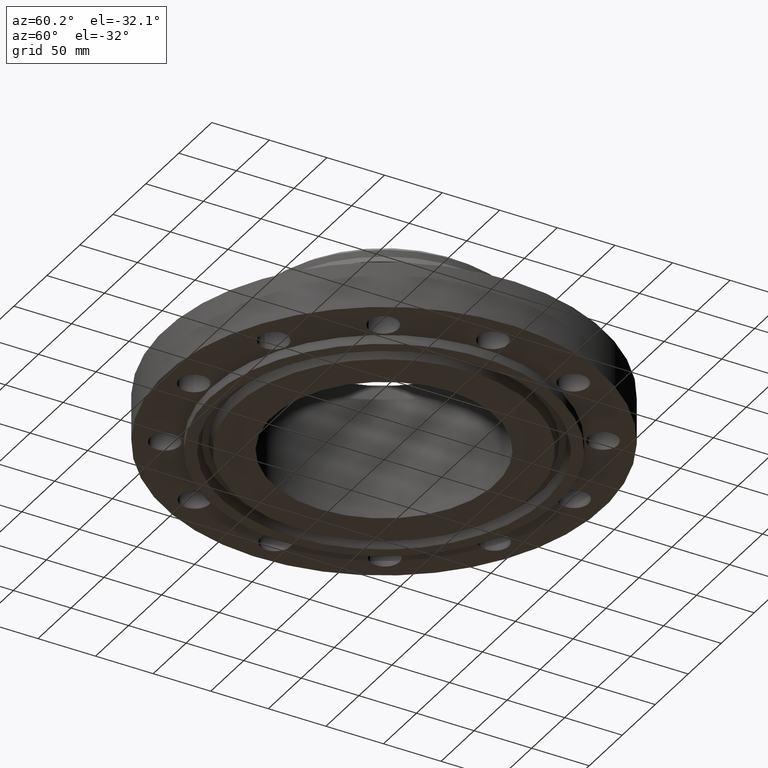
[diagram: clean part render]
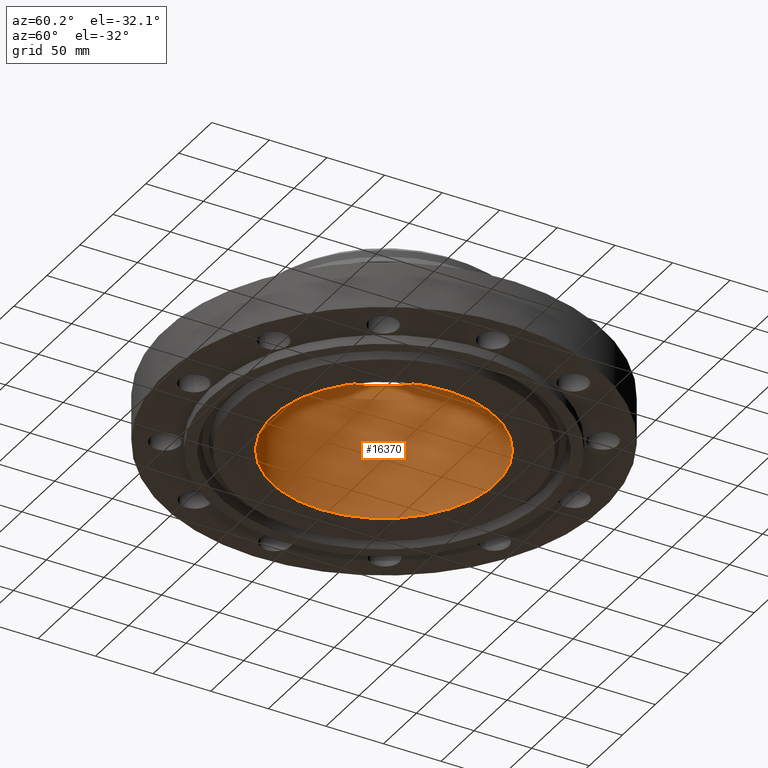
[diagram: same view with one face highlighted and labeled with its STEP entity id]
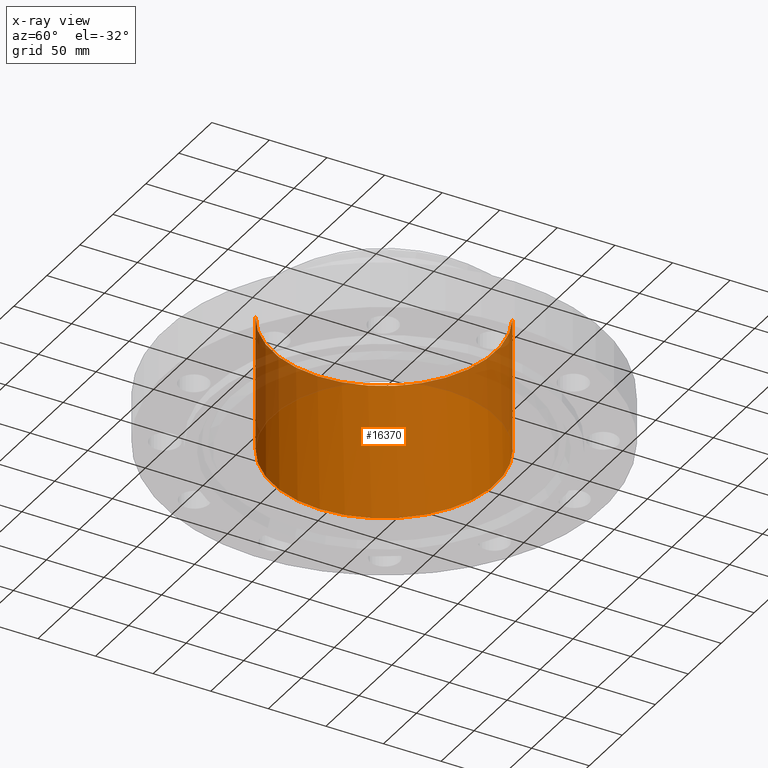
[diagram: x-ray of the same camera — body ghosted, the highlighted face saturated]
A machine part, auxiliary view. The second image highlights one B-rep face of the part: STEP entity #16370.
The next image is the same camera in x-ray: the body ghosted, the highlighted face saturated — about 20% of this face is hidden behind the body in this view.
In plain terms, the highlighted cylindrical surface (partial cylindrical patch) has radius 96.8375 mm, axis along (-0, 0, -1).
Its self-contained STEP definition (entity closure, byte-faithful):
#5494=AXIS2_PLACEMENT_3D('Circle Axis2P3D',#5492,#5493,$) ;
#16331=AXIS2_PLACEMENT_3D('Cylinder Axis2P3D',#16328,#16329,#16330) ;
#5492=CARTESIAN_POINT('Axis2P3D Location',(1.28110295775E-011,-1.54512273492E-011,4.32000000002)) ;
#5496=CARTESIAN_POINT('Vertex',(-1.82780986594,-3.34578351722,4.31999999999)) ;
#5498=CARTESIAN_POINT('Vertex',(1.82780986594,3.34578351722,4.31999999999)) ;
#16328=CARTESIAN_POINT('Axis2P3D Location',(0.,0.,2.00350000001)) ;
#16333=CARTESIAN_POINT('Line Origine',(-1.82780986594,-3.34578351722,2.00350000001)) ;
#16337=CARTESIAN_POINT('Vertex',(-1.82780986594,-3.34578351722,-0.312999999971)) ;
#16341=CARTESIAN_POINT('Control Point',(-1.82780986594,-3.34578351722,-0.312999999971)) ;
#16342=CARTESIAN_POINT('Control Point',(-2.35336431185,-3.05867181487,-0.312999999972)) ;
#16343=CARTESIAN_POINT('Control Point',(-2.82254450683,-2.66836773838,-0.312999999974)) ;
#16344=CARTESIAN_POINT('Control Point',(-3.2082433599,-2.18954753863,-0.312999999975)) ;
#16345=CARTESIAN_POINT('Control Point',(-3.77111360698,-1.10647487489,-0.312999999978)) ;
#16346=CARTESIAN_POINT('Control Point',(-3.88266128349,0.109019438476,-0.312999999981)) ;
#16347=CARTESIAN_POINT('Control Point',(-3.81681454778,0.720326723191,-0.312999999983)) ;
#16348=CARTESIAN_POINT('Control Point',(-3.44897589137,1.88418411687,-0.312999999986)) ;
#16349=CARTESIAN_POINT('Control Point',(-2.66836773838,2.82254450683,-0.312999999989)) ;
#16350=CARTESIAN_POINT('Control Point',(-2.18954753863,3.2082433599,-0.31299999999)) ;
#16351=CARTESIAN_POINT('Control Point',(-1.10647487489,3.77111360698,-0.312999999993)) ;
#16352=CARTESIAN_POINT('Control Point',(0.109019438475,3.88266128349,-0.312999999996)) ;
#16353=CARTESIAN_POINT('Control Point',(0.72032672319,3.81681454778,-0.312999999998)) ;
#16354=CARTESIAN_POINT('Control Point',(1.30225542003,3.63289521957,-0.312999999999)) ;
#16355=CARTESIAN_POINT('Control Point',(1.82780986594,3.34578351722,-0.313000000001)) ;
#16356=CARTESIAN_POINT('Vertex',(1.82780986594,3.34578351722,-0.312999999971)) ;
#16359=CARTESIAN_POINT('Line Origine',(1.82780986594,3.34578351722,2.00350000001)) ;
#5493=DIRECTION('Axis2P3D Direction',(0.,0.,-0.0393700787402)) ;
#16329=DIRECTION('Axis2P3D Direction',(-0.,0.,-0.0393700787402)) ;
#16330=DIRECTION('Axis2P3D XDirection',(-0.0188750212049,-0.0345504945626,0.)) ;
#16334=DIRECTION('Vector Direction',(0.,0.,-0.0393700787402)) ;
#16360=DIRECTION('Vector Direction',(0.,0.,-0.0393700787402)) ;
#16335=VECTOR('Line Direction',#16334,0.0393700787402) ;
#16361=VECTOR('Line Direction',#16360,0.0393700787402) ;
#16365=ORIENTED_EDGE('',*,*,#5500,.F.) ;
#16366=ORIENTED_EDGE('',*,*,#16339,.T.) ;
#16367=ORIENTED_EDGE('',*,*,#16358,.T.) ;
#16368=ORIENTED_EDGE('',*,*,#16363,.F.) ;
#16370=ADVANCED_FACE('PartBody',(#16369),#16332,.F.) ;
#16340=B_SPLINE_CURVE_WITH_KNOTS('',5,(#16341,#16342,#16343,#16344,#16345,#16346,#16347,#16348,#16349,#16350,#16351,#16352,#16353,#16354,#16355),.UNSPECIFIED.,.F.,.U.,(6,3,3,3,6),(-152.111989297,-76.0559946484,-1.42108547152E-014,76.0559946484,152.111989297),.UNSPECIFIED.) ;
#5495=CIRCLE('generated circle',#5494,3.81250000002) ;
#16332=CYLINDRICAL_SURFACE('generated cylinder',#16331,3.81250000002) ;
#5500=EDGE_CURVE('',#5497,#5499,#5495,.T.) ;
#16339=EDGE_CURVE('',#5497,#16338,#16336,.T.) ;
#16358=EDGE_CURVE('',#16338,#16357,#16340,.T.) ;
#16363=EDGE_CURVE('',#5499,#16357,#16362,.T.) ;
#16364=EDGE_LOOP('',(#16365,#16366,#16367,#16368)) ;
#16369=FACE_OUTER_BOUND('',#16364,.T.) ;
#16336=LINE('Line',#16333,#16335) ;
#16362=LINE('Line',#16359,#16361) ;
#5497=VERTEX_POINT('',#5496) ;
#5499=VERTEX_POINT('',#5498) ;
#16338=VERTEX_POINT('',#16337) ;
#16357=VERTEX_POINT('',#16356) ;